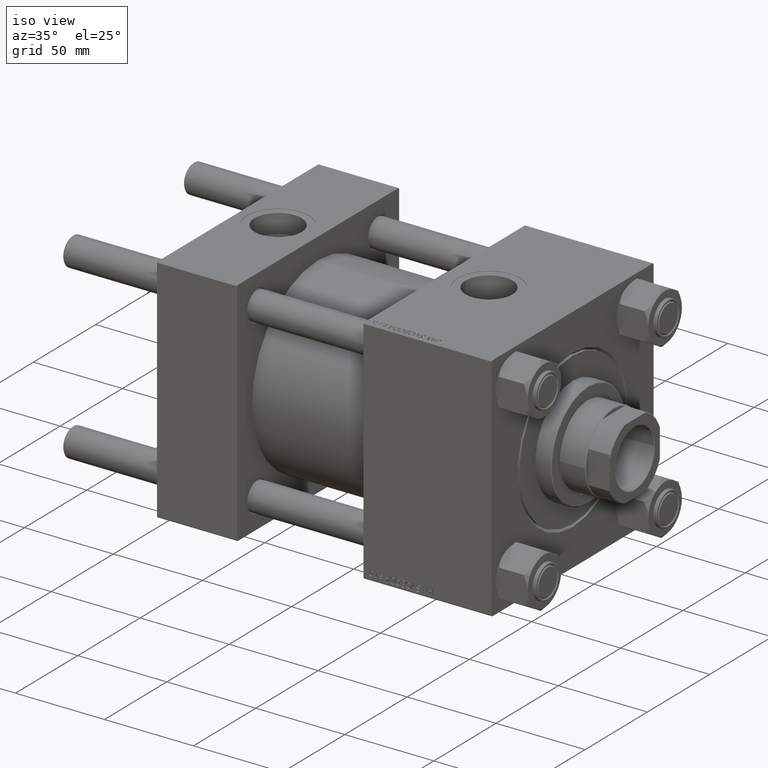
[diagram: clean part render]
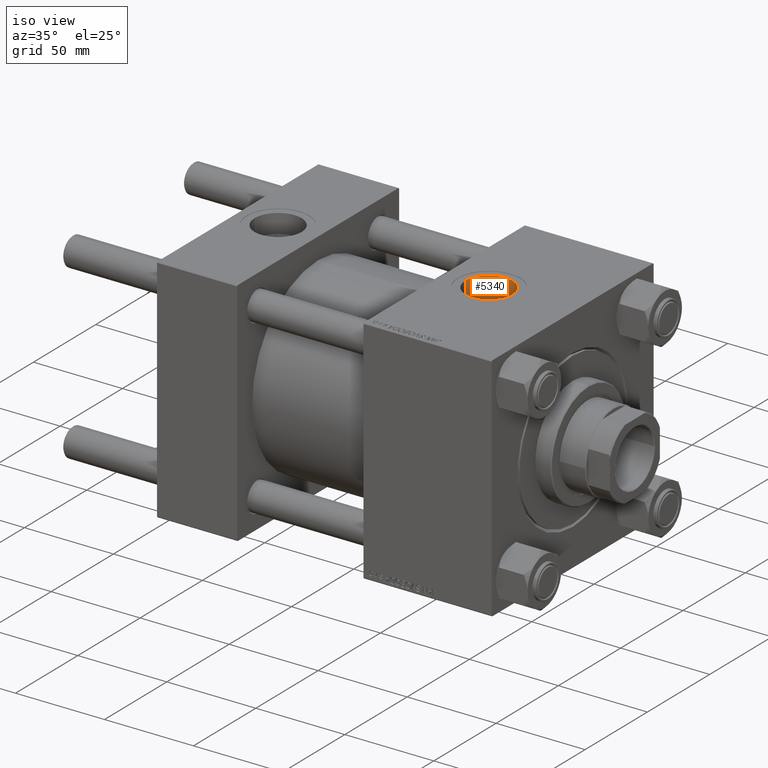
[diagram: same view with one face highlighted and labeled with its STEP entity id]
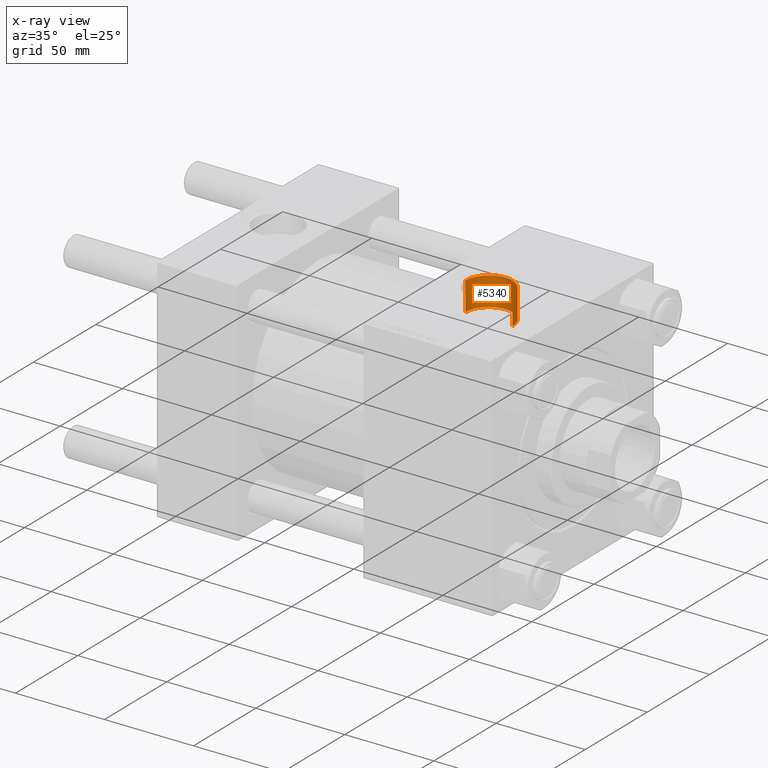
[diagram: x-ray of the same camera — body ghosted, the highlighted face saturated]
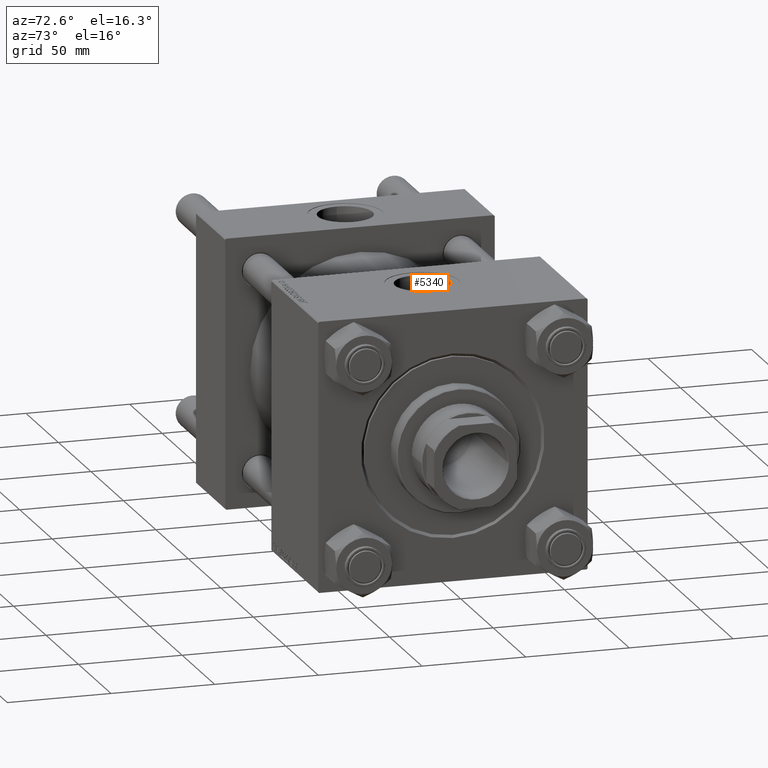
[diagram: same view with one face highlighted and labeled with its STEP entity id]
A machine part, iso view. The second image highlights one B-rep face of the part: STEP entity #5340.
The next image is the same camera in x-ray: the body ghosted, the highlighted face saturated — about 2% of this face is hidden behind the body in this view.
A second angle (auxiliary view) of the same face is appended — the face is thin or edge-on in the first view.
In plain terms, the highlighted cylindrical surface (edge-blend (fillet) strip) has radius 13.22 mm, axis along (0, 0, -1).
Its self-contained STEP definition (entity closure, byte-faithful):
#336 = DIRECTION ( 'NONE',  ( 0.000000000000000000, 0.000000000000000000, 1.000000000000000000 ) ) ;
#443 = EDGE_CURVE ( 'NONE', #24354, #35490, #26698, .T. ) ;
#3149 = DIRECTION ( 'NONE',  ( -1.000000000000000000, 0.000000000000000000, 0.000000000000000000 ) ) ;
#5202 = CARTESIAN_POINT ( 'NONE',  ( 127.7799999999999443, -6.938893903907228378E-15, 64.79999999999999716 ) ) ;
#5340 = ADVANCED_FACE ( 'NONE', ( #34338 ), #6711, .F. ) ;
#6711 = CYLINDRICAL_SURFACE ( 'NONE', #17803, 13.22000000000000952 ) ;
#7122 = CARTESIAN_POINT ( 'NONE',  ( 154.2199999999999704, -5.319910835434425649E-15, 87.79999999999998295 ) ) ;
#7204 = CARTESIAN_POINT ( 'NONE',  ( 140.9999999999999716, -6.938893903907228378E-15, 87.79999999999998295 ) ) ;
#9407 = EDGE_CURVE ( 'NONE', #24354, #26713, #34127, .T. ) ;
#11443 = CIRCLE ( 'NONE', #21985, 13.22000000000000952 ) ;
#11754 = DIRECTION ( 'NONE',  ( 0.000000000000000000, 0.000000000000000000, -1.000000000000000000 ) ) ;
#13405 = EDGE_CURVE ( 'NONE', #31078, #35490, #11443, .T. ) ;
#15448 = ORIENTED_EDGE ( 'NONE', *, *, #9407, .F. ) ;
#17196 = CARTESIAN_POINT ( 'NONE',  ( 127.7799999999999443, -6.938893903907228378E-15, 48.59999999999998721 ) ) ;
#17803 = AXIS2_PLACEMENT_3D ( 'NONE', #7204, #11754, #3149 ) ;
#19028 = DIRECTION ( 'NONE',  ( 0.000000000000000000, 0.000000000000000000, -1.000000000000000000 ) ) ;
#21985 = AXIS2_PLACEMENT_3D ( 'NONE', #22923, #336, #47033 ) ;
#22330 = ORIENTED_EDGE ( 'NONE', *, *, #13405, .F. ) ;
#22923 = CARTESIAN_POINT ( 'NONE',  ( 140.9999999999999716, -6.938893903907228378E-15, 48.59999999999998721 ) ) ;
#24354 = VERTEX_POINT ( 'NONE', #5202 ) ;
#24845 = DIRECTION ( 'NONE',  ( -0.000000000000000000, -0.000000000000000000, -1.000000000000000000 ) ) ;
#24878 = EDGE_CURVE ( 'NONE', #26713, #31078, #30950, .T. ) ;
#26034 = AXIS2_PLACEMENT_3D ( 'NONE', #40080, #24845, #36015 ) ;
#26698 = LINE ( 'NONE', #35049, #29761 ) ;
#26713 = VERTEX_POINT ( 'NONE', #28221 ) ;
#27304 = ORIENTED_EDGE ( 'NONE', *, *, #24878, .F. ) ;
#28221 = CARTESIAN_POINT ( 'NONE',  ( 154.2199999999999704, -5.319910835434425649E-15, 64.79999999999999716 ) ) ;
#29761 = VECTOR ( 'NONE', #38864, 1000.000000000000000 ) ;
#30950 = LINE ( 'NONE', #7122, #41695 ) ;
#31078 = VERTEX_POINT ( 'NONE', #42062 ) ;
#34127 = CIRCLE ( 'NONE', #26034, 13.22000000000000952 ) ;
#34338 = FACE_OUTER_BOUND ( 'NONE', #48699, .T. ) ;
#35049 = CARTESIAN_POINT ( 'NONE',  ( 127.7799999999999443, -6.938893903907228378E-15, 87.79999999999998295 ) ) ;
#35490 = VERTEX_POINT ( 'NONE', #17196 ) ;
#36015 = DIRECTION ( 'NONE',  ( 1.000000000000000000, 0.000000000000000000, 0.000000000000000000 ) ) ;
#38864 = DIRECTION ( 'NONE',  ( 0.000000000000000000, 0.000000000000000000, -1.000000000000000000 ) ) ;
#40080 = CARTESIAN_POINT ( 'NONE',  ( 140.9999999999999716, -6.938893903907228378E-15, 64.79999999999999716 ) ) ;
#41695 = VECTOR ( 'NONE', #19028, 1000.000000000000000 ) ;
#42062 = CARTESIAN_POINT ( 'NONE',  ( 154.2199999999999704, -5.319910835434425649E-15, 48.59999999999998721 ) ) ;
#47033 = DIRECTION ( 'NONE',  ( 1.000000000000000000, 0.000000000000000000, 0.000000000000000000 ) ) ;
#48699 = EDGE_LOOP ( 'NONE', ( #27304, #15448, #49926, #22330 ) ) ;
#49926 = ORIENTED_EDGE ( 'NONE', *, *, #443, .T. ) ;